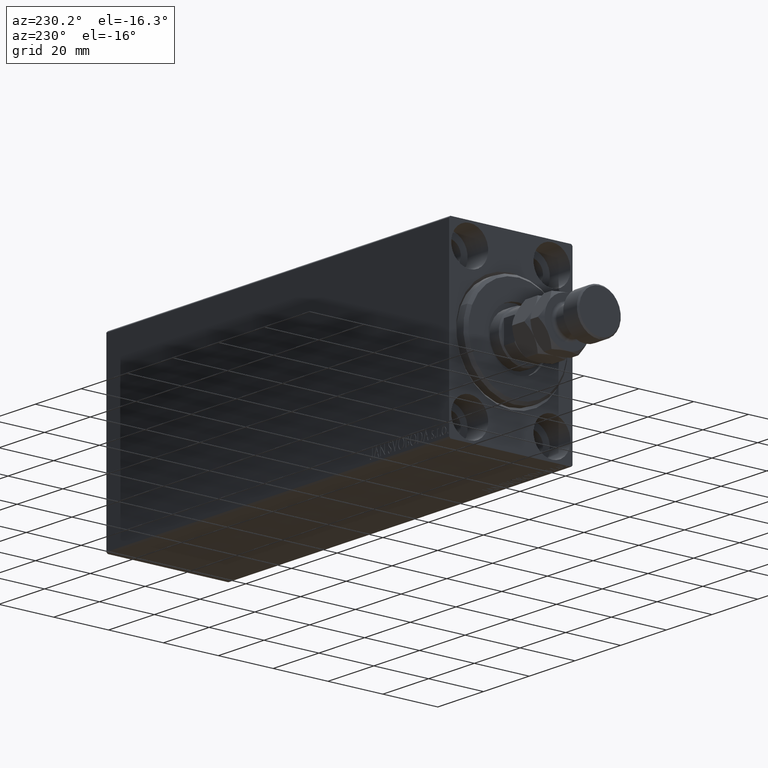
[diagram: clean part render]
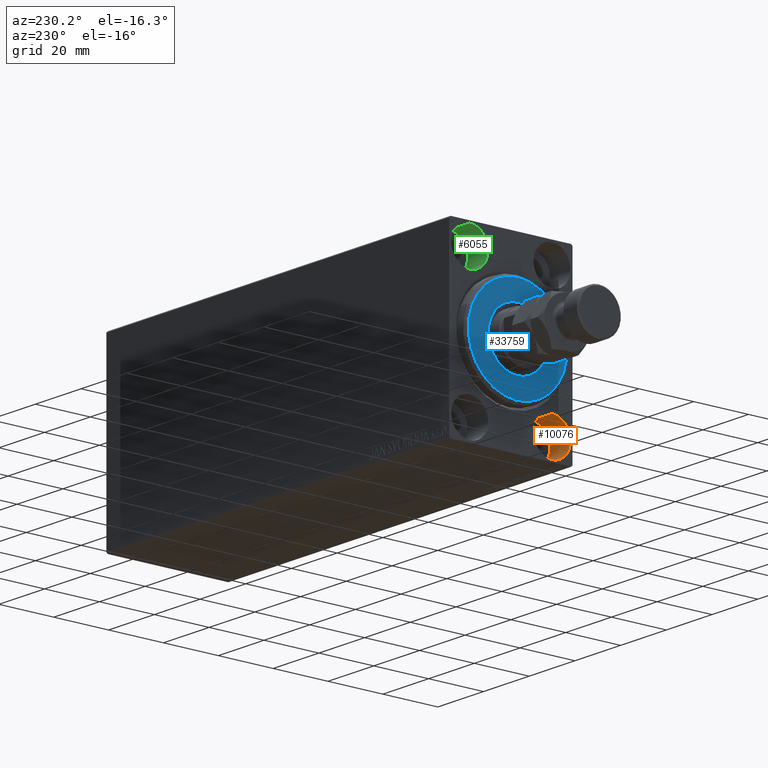
[diagram: same view with three faces highlighted in distinct colors, each labeled with its STEP entity id]
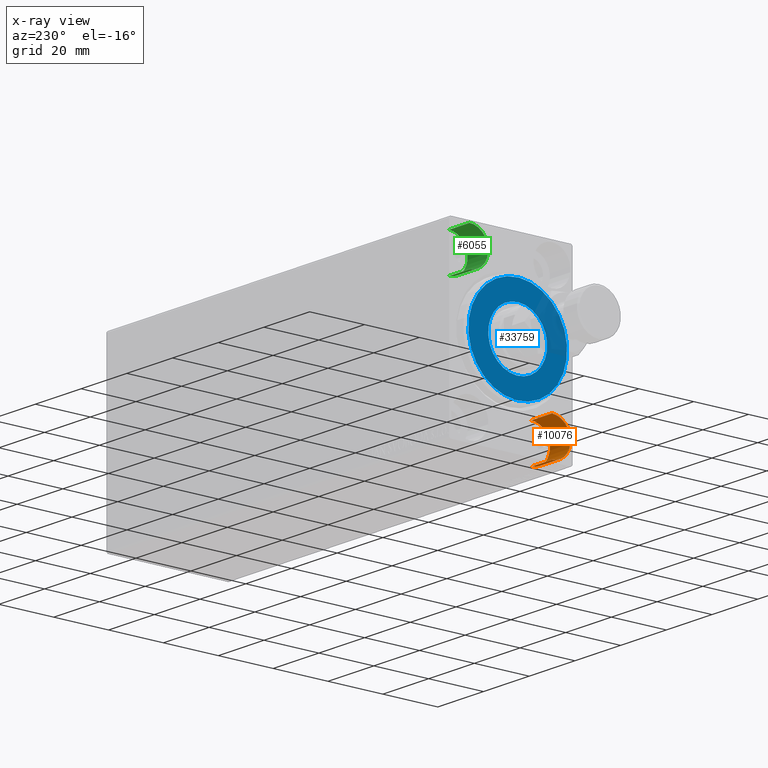
[diagram: x-ray of the same camera — body ghosted, the three highlighted faces saturated]
A machine part, auxiliary view with three faces highlighted in distinct colors.
The next image is the same camera in x-ray (body ghosted, the three faces saturated) — at least one of them is partly hidden behind the body in this view.
Their STEP definitions:

[orange] entity #10076 — the highlighted cylindrical surface (edge-blend (fillet) strip) has radius 6.75 mm, axis along (-1, -0, -0).
#678 = CIRCLE ( 'NONE', #36630, 6.749999999999999112 ) ;
#2846 = VECTOR ( 'NONE', #34577, 1000.000000000000000 ) ;
#3247 = CYLINDRICAL_SURFACE ( 'NONE', #21994, 6.749999999999999112 ) ;
#3788 = ORIENTED_EDGE ( 'NONE', *, *, #32666, .F. ) ;
#7439 = CARTESIAN_POINT ( 'NONE',  ( 9.000000000000000000, -15.00000000000000355, -31.75000000000000000 ) ) ;
#7852 = EDGE_CURVE ( 'NONE', #22081, #28884, #16868, .T. ) ;
#8725 = CARTESIAN_POINT ( 'NONE',  ( 9.000000000000000000, -15.00000000000000355, -25.00000000000000000 ) ) ;
#9028 = CARTESIAN_POINT ( 'NONE',  ( 0.000000000000000000, -15.00000000000000355, -18.25000000000000355 ) ) ;
#9918 = DIRECTION ( 'NONE',  ( 0.000000000000000000, 0.000000000000000000, 1.000000000000000000 ) ) ;
#10076 = ADVANCED_FACE ( 'NONE', ( #34740 ), #3247, .F. ) ;
#10757 = CARTESIAN_POINT ( 'NONE',  ( 9.000000000000000000, -15.00000000000000355, -18.25000000000000355 ) ) ;
#11354 = CIRCLE ( 'NONE', #43648, 6.749999999999999112 ) ;
#13148 = CARTESIAN_POINT ( 'NONE',  ( 9.000000000000000000, -15.00000000000000355, -31.75000000000000000 ) ) ;
#13360 = CARTESIAN_POINT ( 'NONE',  ( 9.000000000000000000, -15.00000000000000355, -25.00000000000000000 ) ) ;
#15084 = VERTEX_POINT ( 'NONE', #10757 ) ;
#16590 = CARTESIAN_POINT ( 'NONE',  ( 0.000000000000000000, -15.00000000000000355, -25.00000000000000000 ) ) ;
#16798 = DIRECTION ( 'NONE',  ( -1.000000000000000000, -0.000000000000000000, -0.000000000000000000 ) ) ;
#16868 = LINE ( 'NONE', #7439, #2846 ) ;
#17069 = ORIENTED_EDGE ( 'NONE', *, *, #7852, .T. ) ;
#17500 = VERTEX_POINT ( 'NONE', #9028 ) ;
#18389 = DIRECTION ( 'NONE',  ( -1.000000000000000000, -0.000000000000000000, -0.000000000000000000 ) ) ;
#21994 = AXIS2_PLACEMENT_3D ( 'NONE', #8725, #18389, #25985 ) ;
#22081 = VERTEX_POINT ( 'NONE', #13148 ) ;
#24544 = VECTOR ( 'NONE', #16798, 1000.000000000000000 ) ;
#25985 = DIRECTION ( 'NONE',  ( 0.000000000000000000, 0.000000000000000000, 1.000000000000000000 ) ) ;
#26496 = DIRECTION ( 'NONE',  ( -1.000000000000000000, 0.000000000000000000, 0.000000000000000000 ) ) ;
#27368 = ORIENTED_EDGE ( 'NONE', *, *, #32607, .F. ) ;
#28884 = VERTEX_POINT ( 'NONE', #32677 ) ;
#31274 = DIRECTION ( 'NONE',  ( 0.000000000000000000, 0.000000000000000000, 1.000000000000000000 ) ) ;
#32607 = EDGE_CURVE ( 'NONE', #22081, #15084, #11354, .T. ) ;
#32666 = EDGE_CURVE ( 'NONE', #15084, #17500, #34729, .T. ) ;
#32677 = CARTESIAN_POINT ( 'NONE',  ( 0.000000000000000000, -15.00000000000000355, -31.75000000000000000 ) ) ;
#34285 = CARTESIAN_POINT ( 'NONE',  ( 9.000000000000000000, -15.00000000000000355, -18.25000000000000355 ) ) ;
#34577 = DIRECTION ( 'NONE',  ( -1.000000000000000000, -0.000000000000000000, -0.000000000000000000 ) ) ;
#34729 = LINE ( 'NONE', #34285, #24544 ) ;
#34740 = FACE_OUTER_BOUND ( 'NONE', #40637, .T. ) ;
#36630 = AXIS2_PLACEMENT_3D ( 'NONE', #16590, #26496, #9918 ) ;
#37513 = DIRECTION ( 'NONE',  ( -1.000000000000000000, 0.000000000000000000, 0.000000000000000000 ) ) ;
#38641 = ORIENTED_EDGE ( 'NONE', *, *, #39677, .T. ) ;
#39677 = EDGE_CURVE ( 'NONE', #28884, #17500, #678, .T. ) ;
#40637 = EDGE_LOOP ( 'NONE', ( #27368, #17069, #38641, #3788 ) ) ;
#43648 = AXIS2_PLACEMENT_3D ( 'NONE', #13360, #37513, #31274 ) ;

[blue] entity #33759 — the highlighted planar face has unit normal (-1, 0, 0).
#989 = CARTESIAN_POINT ( 'NONE',  ( 3.000000000000000000, 0.000000000000000000, 0.000000000000000000 ) ) ;
#2332 = EDGE_LOOP ( 'NONE', ( #36090, #13897 ) ) ;
#3368 = EDGE_LOOP ( 'NONE', ( #36239, #41880 ) ) ;
#3423 = DIRECTION ( 'NONE',  ( 1.000000000000000000, -0.000000000000000000, 0.000000000000000000 ) ) ;
#5911 = DIRECTION ( 'NONE',  ( 1.000000000000000000, -0.000000000000000000, 0.000000000000000000 ) ) ;
#6250 = AXIS2_PLACEMENT_3D ( 'NONE', #38354, #3423, #31230 ) ;
#6611 = EDGE_CURVE ( 'NONE', #8458, #29718, #32164, .T. ) ;
#8458 = VERTEX_POINT ( 'NONE', #22308 ) ;
#8508 = FACE_BOUND ( 'NONE', #2332, .T. ) ;
#10883 = AXIS2_PLACEMENT_3D ( 'NONE', #16240, #5911, #22918 ) ;
#11748 = CIRCLE ( 'NONE', #29386, 10.75000000000000000 ) ;
#12408 = DIRECTION ( 'NONE',  ( 0.000000000000000000, 0.000000000000000000, -1.000000000000000000 ) ) ;
#12532 = CARTESIAN_POINT ( 'NONE',  ( 3.000000000000000000, 0.000000000000000000, 0.000000000000000000 ) ) ;
#13479 = CARTESIAN_POINT ( 'NONE',  ( 3.000000000000000000, 0.000000000000000000, 10.75000000000000000 ) ) ;
#13897 = ORIENTED_EDGE ( 'NONE', *, *, #16463, .T. ) ;
#13921 = EDGE_CURVE ( 'NONE', #21529, #43954, #15359, .T. ) ;
#15359 = CIRCLE ( 'NONE', #27137, 10.75000000000000000 ) ;
#16240 = CARTESIAN_POINT ( 'NONE',  ( 3.000000000000000000, 0.000000000000000000, 0.000000000000000000 ) ) ;
#16273 = EDGE_CURVE ( 'NONE', #29718, #8458, #43332, .T. ) ;
#16463 = EDGE_CURVE ( 'NONE', #43954, #21529, #11748, .T. ) ;
#18667 = DIRECTION ( 'NONE',  ( 0.000000000000000000, 0.000000000000000000, -1.000000000000000000 ) ) ;
#18842 = FACE_OUTER_BOUND ( 'NONE', #3368, .T. ) ;
#21529 = VERTEX_POINT ( 'NONE', #13479 ) ;
#22308 = CARTESIAN_POINT ( 'NONE',  ( 3.000000000000000000, 2.265596578422603002E-15, -17.99999999999999645 ) ) ;
#22536 = CARTESIAN_POINT ( 'NONE',  ( 3.000000000000000000, 0.000000000000000000, 0.000000000000000000 ) ) ;
#22918 = DIRECTION ( 'NONE',  ( 0.000000000000000000, 0.000000000000000000, -1.000000000000000000 ) ) ;
#23894 = PLANE ( 'NONE',  #6250 ) ;
#26030 = CARTESIAN_POINT ( 'NONE',  ( 3.000000000000000000, 0.000000000000000000, 17.99999999999999645 ) ) ;
#27137 = AXIS2_PLACEMENT_3D ( 'NONE', #989, #29244, #18667 ) ;
#29244 = DIRECTION ( 'NONE',  ( -1.000000000000000000, 0.000000000000000000, -0.000000000000000000 ) ) ;
#29386 = AXIS2_PLACEMENT_3D ( 'NONE', #22536, #43899, #12408 ) ;
#29718 = VERTEX_POINT ( 'NONE', #26030 ) ;
#30225 = DIRECTION ( 'NONE',  ( 0.000000000000000000, 0.000000000000000000, -1.000000000000000000 ) ) ;
#31230 = DIRECTION ( 'NONE',  ( 0.000000000000000000, 0.000000000000000000, -1.000000000000000000 ) ) ;
#32164 = CIRCLE ( 'NONE', #10883, 17.99999999999999645 ) ;
#33759 = ADVANCED_FACE ( 'NONE', ( #18842, #8508 ), #23894, .T. ) ;
#36090 = ORIENTED_EDGE ( 'NONE', *, *, #13921, .T. ) ;
#36239 = ORIENTED_EDGE ( 'NONE', *, *, #16273, .T. ) ;
#36735 = AXIS2_PLACEMENT_3D ( 'NONE', #12532, #40572, #30225 ) ;
#38354 = CARTESIAN_POINT ( 'NONE',  ( 3.000000000000000000, 0.000000000000000000, 0.000000000000000000 ) ) ;
#39018 = CARTESIAN_POINT ( 'NONE',  ( 3.000000000000000000, 1.316495309083404223E-15, -10.75000000000000000 ) ) ;
#40572 = DIRECTION ( 'NONE',  ( 1.000000000000000000, -0.000000000000000000, 0.000000000000000000 ) ) ;
#41880 = ORIENTED_EDGE ( 'NONE', *, *, #6611, .T. ) ;
#43332 = CIRCLE ( 'NONE', #36735, 17.99999999999999645 ) ;
#43899 = DIRECTION ( 'NONE',  ( -1.000000000000000000, 0.000000000000000000, -0.000000000000000000 ) ) ;
#43954 = VERTEX_POINT ( 'NONE', #39018 ) ;

[green] entity #6055 — the highlighted cylindrical surface (edge-blend (fillet) strip) has radius 6.75 mm, axis along (-1, -0, -0).
#219 = DIRECTION ( 'NONE',  ( 0.000000000000000000, 0.000000000000000000, 1.000000000000000000 ) ) ;
#2789 = CARTESIAN_POINT ( 'NONE',  ( 9.000000000000000000, 15.00000000000000355, 25.00000000000000000 ) ) ;
#6055 = ADVANCED_FACE ( 'NONE', ( #10285 ), #30756, .F. ) ;
#7944 = DIRECTION ( 'NONE',  ( -1.000000000000000000, -0.000000000000000000, -0.000000000000000000 ) ) ;
#9690 = DIRECTION ( 'NONE',  ( 0.000000000000000000, 0.000000000000000000, 1.000000000000000000 ) ) ;
#9838 = DIRECTION ( 'NONE',  ( -1.000000000000000000, -0.000000000000000000, -0.000000000000000000 ) ) ;
#10285 = FACE_OUTER_BOUND ( 'NONE', #40466, .T. ) ;
#10856 = DIRECTION ( 'NONE',  ( -1.000000000000000000, -0.000000000000000000, -0.000000000000000000 ) ) ;
#10966 = EDGE_CURVE ( 'NONE', #40630, #20238, #42895, .T. ) ;
#12481 = CIRCLE ( 'NONE', #27202, 6.749999999999999112 ) ;
#13294 = EDGE_CURVE ( 'NONE', #40630, #29208, #21923, .T. ) ;
#14527 = LINE ( 'NONE', #25339, #26005 ) ;
#15401 = VECTOR ( 'NONE', #7944, 1000.000000000000000 ) ;
#15762 = ORIENTED_EDGE ( 'NONE', *, *, #13294, .F. ) ;
#16672 = EDGE_CURVE ( 'NONE', #20238, #28759, #12481, .T. ) ;
#17900 = DIRECTION ( 'NONE',  ( -1.000000000000000000, 0.000000000000000000, 0.000000000000000000 ) ) ;
#20238 = VERTEX_POINT ( 'NONE', #23016 ) ;
#21923 = CIRCLE ( 'NONE', #27811, 6.749999999999999112 ) ;
#23016 = CARTESIAN_POINT ( 'NONE',  ( 0.000000000000000000, 15.00000000000000355, 18.25000000000000355 ) ) ;
#25339 = CARTESIAN_POINT ( 'NONE',  ( 9.000000000000000000, 15.00000000000000355, 31.75000000000000000 ) ) ;
#25424 = CARTESIAN_POINT ( 'NONE',  ( 9.000000000000000000, 15.00000000000000355, 18.25000000000000355 ) ) ;
#26005 = VECTOR ( 'NONE', #10856, 1000.000000000000000 ) ;
#27202 = AXIS2_PLACEMENT_3D ( 'NONE', #38816, #17900, #219 ) ;
#27811 = AXIS2_PLACEMENT_3D ( 'NONE', #2789, #41184, #9690 ) ;
#28759 = VERTEX_POINT ( 'NONE', #36865 ) ;
#29208 = VERTEX_POINT ( 'NONE', #43379 ) ;
#29772 = ORIENTED_EDGE ( 'NONE', *, *, #31365, .F. ) ;
#30756 = CYLINDRICAL_SURFACE ( 'NONE', #32895, 6.749999999999999112 ) ;
#31365 = EDGE_CURVE ( 'NONE', #29208, #28759, #14527, .T. ) ;
#32895 = AXIS2_PLACEMENT_3D ( 'NONE', #34433, #9838, #41560 ) ;
#32970 = ORIENTED_EDGE ( 'NONE', *, *, #16672, .T. ) ;
#34433 = CARTESIAN_POINT ( 'NONE',  ( 9.000000000000000000, 15.00000000000000355, 25.00000000000000000 ) ) ;
#36865 = CARTESIAN_POINT ( 'NONE',  ( 0.000000000000000000, 15.00000000000000355, 31.75000000000000000 ) ) ;
#38816 = CARTESIAN_POINT ( 'NONE',  ( 0.000000000000000000, 15.00000000000000355, 25.00000000000000000 ) ) ;
#40466 = EDGE_LOOP ( 'NONE', ( #15762, #43783, #32970, #29772 ) ) ;
#40630 = VERTEX_POINT ( 'NONE', #40745 ) ;
#40745 = CARTESIAN_POINT ( 'NONE',  ( 9.000000000000000000, 15.00000000000000355, 18.25000000000000355 ) ) ;
#41184 = DIRECTION ( 'NONE',  ( -1.000000000000000000, 0.000000000000000000, 0.000000000000000000 ) ) ;
#41560 = DIRECTION ( 'NONE',  ( 0.000000000000000000, 0.000000000000000000, 1.000000000000000000 ) ) ;
#42895 = LINE ( 'NONE', #25424, #15401 ) ;
#43379 = CARTESIAN_POINT ( 'NONE',  ( 9.000000000000000000, 15.00000000000000355, 31.75000000000000000 ) ) ;
#43783 = ORIENTED_EDGE ( 'NONE', *, *, #10966, .T. ) ;